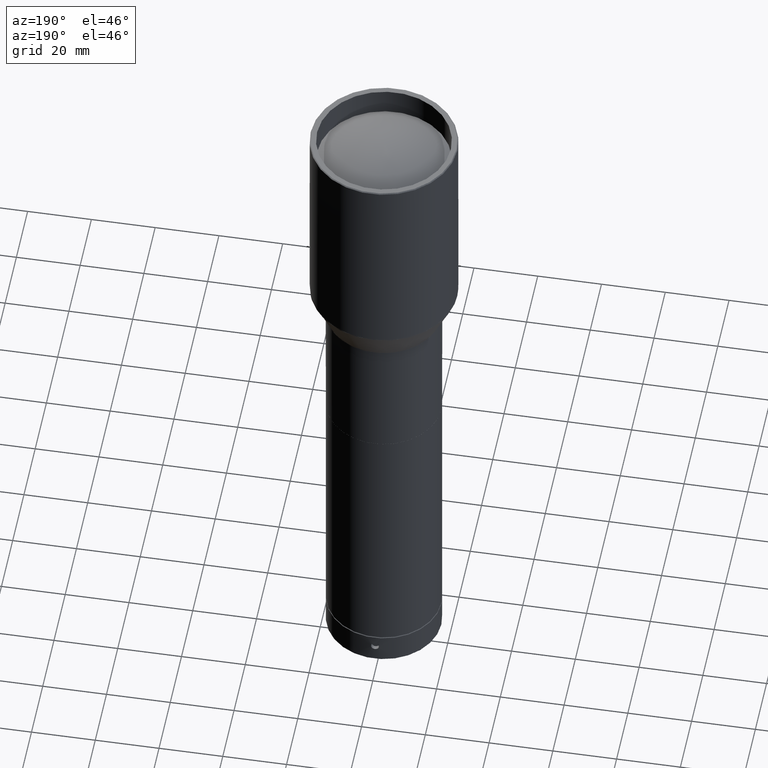
[diagram: clean part render]
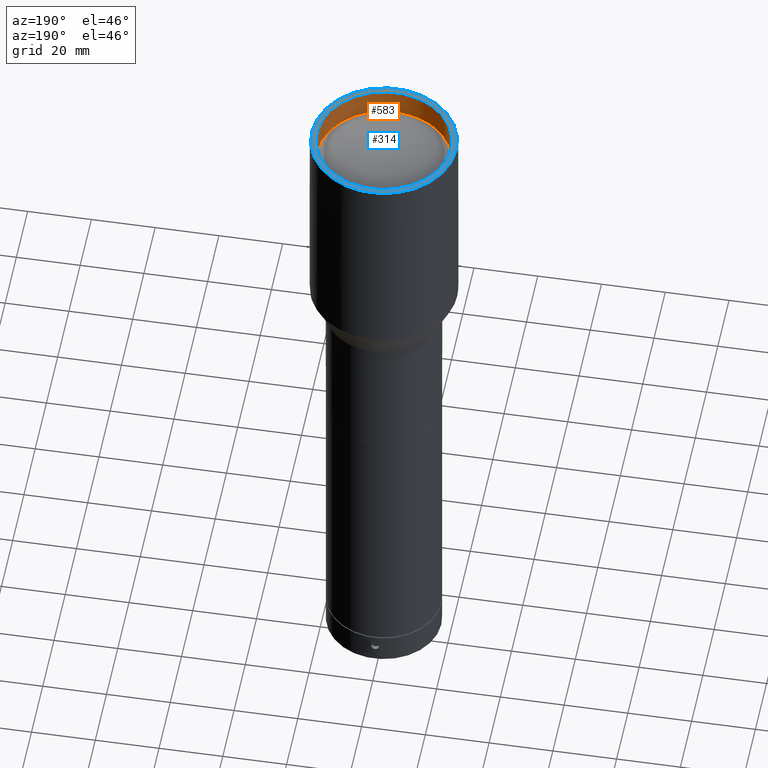
[diagram: same view with the hole feature highlighted: cylindrical wall and planar end face, labeled with their STEP entity ids]
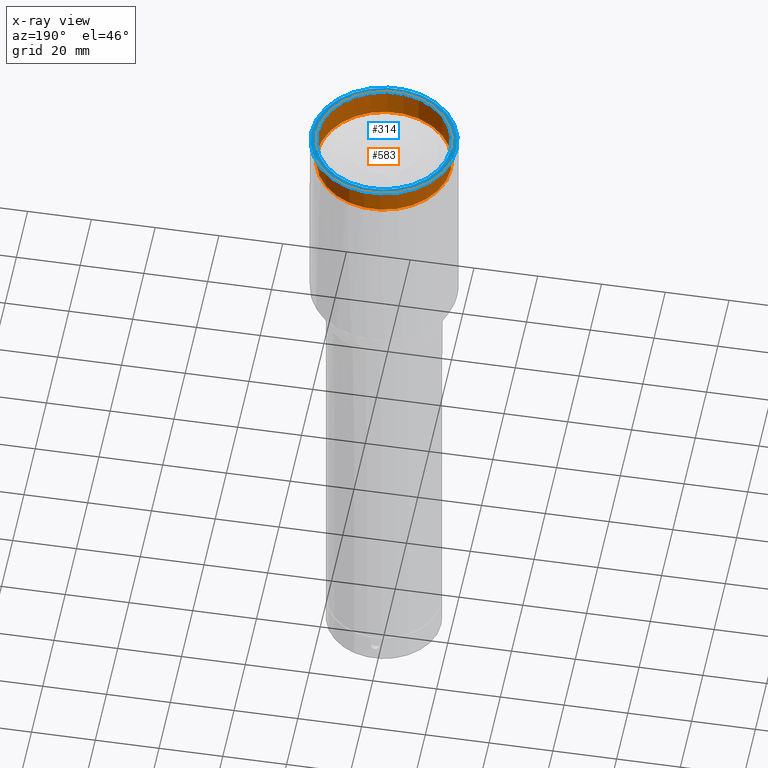
[diagram: x-ray of the same camera — body ghosted, the hole faces saturated]
A machine part, auxiliary view. The highlighted faces form one hole feature of diameter 42 mm: the cylindrical wall (entity #583, orange) and its adjacent planar end face (entity #314, blue) — they share a circular edge in the B-rep.
The next image is the same camera in x-ray (body ghosted, the hole faces saturated) — the bore reads through the body.
Wall:
#5 = DIRECTION ( 'NONE',  ( -0.000000000000000000, -0.000000000000000000, 1.000000000000000000 ) ) ;
#14 = DIRECTION ( 'NONE',  ( 1.000000000000000000, 0.000000000000000000, 0.000000000000000000 ) ) ;
#91 = CARTESIAN_POINT ( 'NONE',  ( 0.000000000000000000, 0.000000000000000000, -503.0000000000001137 ) ) ;
#129 = CYLINDRICAL_SURFACE ( 'NONE', #450, 21.00000000000000000 ) ;
#181 = CARTESIAN_POINT ( 'NONE',  ( 21.00000000000000000, 0.000000000000000000, -503.0000000000001137 ) ) ;
#204 = CIRCLE ( 'NONE', #845, 21.00000000000000000 ) ;
#286 = DIRECTION ( 'NONE',  ( 0.000000000000000000, 0.000000000000000000, 1.000000000000000000 ) ) ;
#309 = EDGE_LOOP ( 'NONE', ( #791 ) ) ;
#329 = ORIENTED_EDGE ( 'NONE', *, *, #626, .F. ) ;
#365 = FACE_OUTER_BOUND ( 'NONE', #309, .T. ) ;
#422 = VERTEX_POINT ( 'NONE', #482 ) ;
#450 = AXIS2_PLACEMENT_3D ( 'NONE', #653, #5, #499 ) ;
#482 = CARTESIAN_POINT ( 'NONE',  ( 21.00000000000000000, 0.000000000000000000, -512.0000000000001137 ) ) ;
#499 = DIRECTION ( 'NONE',  ( 1.000000000000000000, 0.000000000000000000, 0.000000000000000000 ) ) ;
#571 = DIRECTION ( 'NONE',  ( 1.000000000000000000, 0.000000000000000000, 0.000000000000000000 ) ) ;
#583 = ADVANCED_FACE ( 'NONE', ( #913, #365 ), #129, .F. ) ;
#626 = EDGE_CURVE ( 'NONE', #422, #422, #204, .T. ) ;
#651 = VERTEX_POINT ( 'NONE', #181 ) ;
#653 = CARTESIAN_POINT ( 'NONE',  ( 0.000000000000000000, 0.000000000000000000, -512.0000000000001137 ) ) ;
#665 = DIRECTION ( 'NONE',  ( 0.000000000000000000, 0.000000000000000000, 1.000000000000000000 ) ) ;
#706 = CIRCLE ( 'NONE', #866, 21.00000000000000000 ) ;
#736 = EDGE_CURVE ( 'NONE', #651, #651, #706, .T. ) ;
#791 = ORIENTED_EDGE ( 'NONE', *, *, #736, .T. ) ;
#798 = CARTESIAN_POINT ( 'NONE',  ( 0.000000000000000000, 0.000000000000000000, -512.0000000000001137 ) ) ;
#845 = AXIS2_PLACEMENT_3D ( 'NONE', #798, #286, #571 ) ;
#866 = AXIS2_PLACEMENT_3D ( 'NONE', #91, #665, #14 ) ;
#911 = EDGE_LOOP ( 'NONE', ( #329 ) ) ;
#913 = FACE_OUTER_BOUND ( 'NONE', #911, .T. ) ;
End face:
#14 = DIRECTION ( 'NONE',  ( 1.000000000000000000, 0.000000000000000000, 0.000000000000000000 ) ) ;
#85 = CARTESIAN_POINT ( 'NONE',  ( -22.70000000000003837, 6.505213034913026604E-16, -503.0000000000001137 ) ) ;
#91 = CARTESIAN_POINT ( 'NONE',  ( 0.000000000000000000, 0.000000000000000000, -503.0000000000001137 ) ) ;
#150 = ORIENTED_EDGE ( 'NONE', *, *, #736, .F. ) ;
#166 = EDGE_LOOP ( 'NONE', ( #150 ) ) ;
#181 = CARTESIAN_POINT ( 'NONE',  ( 21.00000000000000000, 0.000000000000000000, -503.0000000000001137 ) ) ;
#185 = FACE_OUTER_BOUND ( 'NONE', #346, .T. ) ;
#190 = DIRECTION ( 'NONE',  ( 0.000000000000000000, 0.000000000000000000, -1.000000000000000000 ) ) ;
#195 = CIRCLE ( 'NONE', #912, 22.70000000000003837 ) ;
#249 = VERTEX_POINT ( 'NONE', #85 ) ;
#314 = ADVANCED_FACE ( 'NONE', ( #822, #185 ), #460, .T. ) ;
#346 = EDGE_LOOP ( 'NONE', ( #642 ) ) ;
#460 = PLANE ( 'NONE',  #859 ) ;
#468 = DIRECTION ( 'NONE',  ( -1.000000000000000000, 0.000000000000000000, 0.000000000000000000 ) ) ;
#471 = DIRECTION ( 'NONE',  ( 1.000000000000000000, 0.000000000000000000, 2.775557561562967156E-17 ) ) ;
#608 = CARTESIAN_POINT ( 'NONE',  ( -2.856440336664232582, 21.56161516684399615, -503.0000000000001137 ) ) ;
#622 = CARTESIAN_POINT ( 'NONE',  ( -1.734723475976807094E-15, 6.505213034913026604E-16, -503.0000000000001137 ) ) ;
#642 = ORIENTED_EDGE ( 'NONE', *, *, #879, .F. ) ;
#651 = VERTEX_POINT ( 'NONE', #181 ) ;
#665 = DIRECTION ( 'NONE',  ( 0.000000000000000000, 0.000000000000000000, 1.000000000000000000 ) ) ;
#706 = CIRCLE ( 'NONE', #866, 21.00000000000000000 ) ;
#736 = EDGE_CURVE ( 'NONE', #651, #651, #706, .T. ) ;
#822 = FACE_BOUND ( 'NONE', #166, .T. ) ;
#859 = AXIS2_PLACEMENT_3D ( 'NONE', #608, #901, #471 ) ;
#866 = AXIS2_PLACEMENT_3D ( 'NONE', #91, #665, #14 ) ;
#879 = EDGE_CURVE ( 'NONE', #249, #249, #195, .T. ) ;
#901 = DIRECTION ( 'NONE',  ( -2.775557561562967156E-17, 6.938893903907539608E-18, 1.000000000000000000 ) ) ;
#912 = AXIS2_PLACEMENT_3D ( 'NONE', #622, #190, #468 ) ;